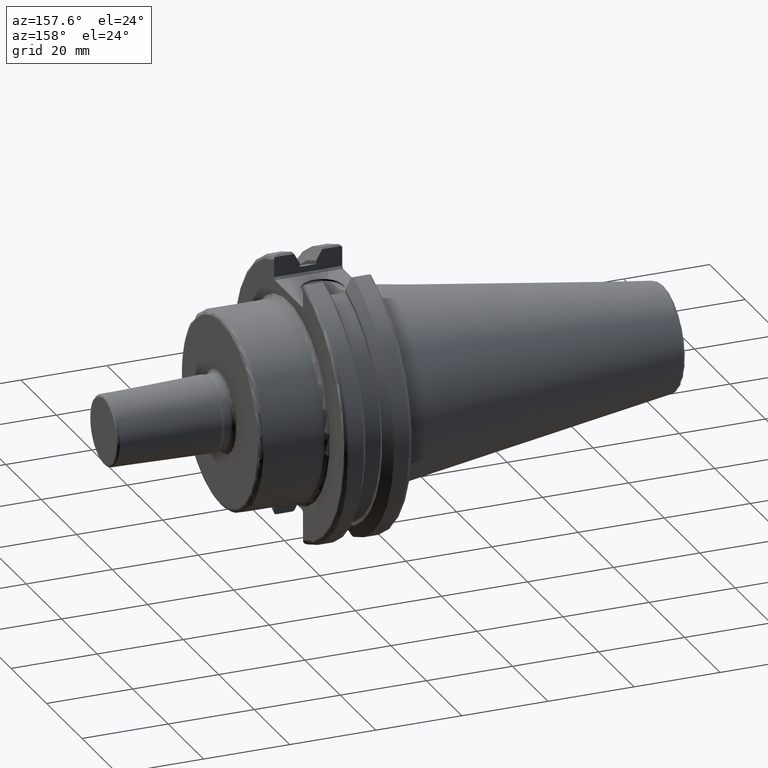
[diagram: clean part render]
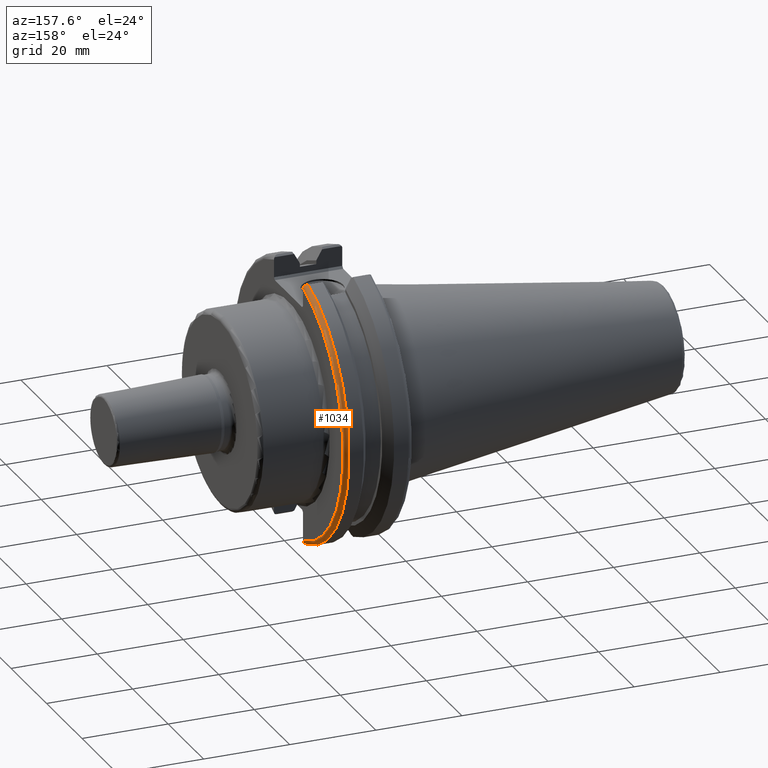
[diagram: same view with one face highlighted and labeled with its STEP entity id]
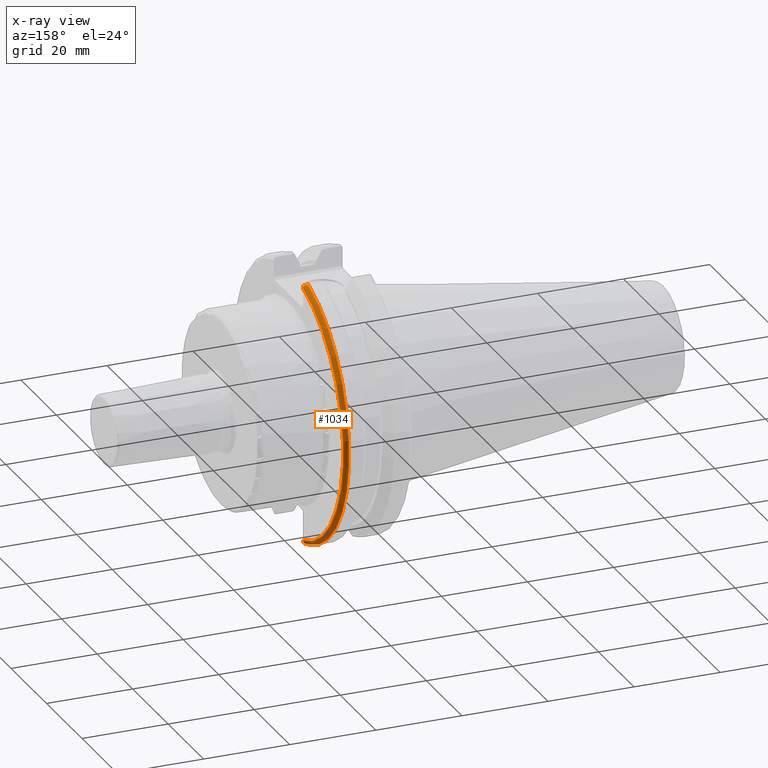
[diagram: x-ray of the same camera — body ghosted, the highlighted face saturated]
A machine part, auxiliary view. The second image highlights one B-rep face of the part: STEP entity #1034.
The next image is the same camera in x-ray: the body ghosted, the highlighted face saturated — about 0% of this face is hidden behind the body in this view.
In plain terms, the highlighted toroidal blend (fillet) surface has major radius 30.75 mm and minor (blend) radius 1 mm.
Its self-contained STEP definition (entity closure, byte-faithful):
#242=FACE_OUTER_BOUND('',#305,.T.);
#305=EDGE_LOOP('',(#766,#767,#768,#769,#770,#771));
#356=B_SPLINE_CURVE_WITH_KNOTS('',3,(#1633,#1634,#1635,#1636,#1637,#1638),
 .UNSPECIFIED.,.F.,.F.,(4,2,4),(0.0977210450333157,0.111963554372601,0.150804064902975),
 .UNSPECIFIED.);
#357=B_SPLINE_CURVE_WITH_KNOTS('',3,(#1642,#1643,#1644,#1645,#1646,#1647),
 .UNSPECIFIED.,.F.,.F.,(4,2,4),(0.452741154494498,0.491581665024872,0.505824174364157),
 .UNSPECIFIED.);
#358=B_SPLINE_CURVE_WITH_KNOTS('',3,(#1649,#1650,#1651,#1652,#1653,#1654,
#1655,#1656),.UNSPECIFIED.,.F.,.F.,(4,2,2,4),(-0.104180282751876,-0.0729784742461443,
-0.0343524753874979,0.),.UNSPECIFIED.);
#359=B_SPLINE_CURVE_WITH_KNOTS('',3,(#1659,#1660,#1661,#1662,#1663,#1664,
#1665,#1666),.UNSPECIFIED.,.F.,.F.,(4,2,2,4),(0.,0.0343524753874976,0.0729784742461442,
0.104180282751876),.UNSPECIFIED.);
#399=CIRCLE('',#1146,30.75);
#400=CIRCLE('',#1147,31.75);
#462=VERTEX_POINT('',#1631);
#463=VERTEX_POINT('',#1632);
#464=VERTEX_POINT('',#1639);
#465=VERTEX_POINT('',#1641);
#466=VERTEX_POINT('',#1648);
#467=VERTEX_POINT('',#1657);
#578=EDGE_CURVE('',#462,#463,#356,.T.);
#579=EDGE_CURVE('',#463,#464,#399,.T.);
#580=EDGE_CURVE('',#464,#465,#357,.T.);
#581=EDGE_CURVE('',#465,#466,#358,.T.);
#582=EDGE_CURVE('',#466,#467,#400,.T.);
#583=EDGE_CURVE('',#467,#462,#359,.T.);
#766=ORIENTED_EDGE('',*,*,#578,.T.);
#767=ORIENTED_EDGE('',*,*,#579,.T.);
#768=ORIENTED_EDGE('',*,*,#580,.T.);
#769=ORIENTED_EDGE('',*,*,#581,.T.);
#770=ORIENTED_EDGE('',*,*,#582,.T.);
#771=ORIENTED_EDGE('',*,*,#583,.T.);
#1014=TOROIDAL_SURFACE('',#1145,30.75,1.);
#1034=ADVANCED_FACE('',(#242),#1014,.T.);
#1145=AXIS2_PLACEMENT_3D('',#1630,#1322,#1323);
#1146=AXIS2_PLACEMENT_3D('',#1640,#1324,#1325);
#1147=AXIS2_PLACEMENT_3D('',#1658,#1326,#1327);
#1322=DIRECTION('center_axis',(1.,0.,0.));
#1323=DIRECTION('ref_axis',(0.,0.,-1.));
#1324=DIRECTION('center_axis',(-1.,0.,0.));
#1325=DIRECTION('ref_axis',(0.,1.,-6.12323399573677E-17));
#1326=DIRECTION('center_axis',(1.,0.,0.));
#1327=DIRECTION('ref_axis',(0.,1.,-6.12323399573676E-17));
#1630=CARTESIAN_POINT('Origin',(18.05,0.,0.));
#1631=CARTESIAN_POINT('',(18.9058722749097,8.19,30.1755016258903));
#1632=CARTESIAN_POINT('',(19.05,8.19,29.6392712461019));
#1633=CARTESIAN_POINT('Ctrl Pts',(18.9058722749097,8.19,30.1755016258903));
#1634=CARTESIAN_POINT('Ctrl Pts',(18.9318163728133,8.19,30.131014531546));
#1635=CARTESIAN_POINT('Ctrl Pts',(18.9539643471756,8.19,30.0852355256475));
#1636=CARTESIAN_POINT('Ctrl Pts',(19.020485567083,8.19,29.9212724384851));
#1637=CARTESIAN_POINT('Ctrl Pts',(19.05,8.19,29.7687396145364));
#1638=CARTESIAN_POINT('Ctrl Pts',(19.05,8.19,29.6392712461019));
#1639=CARTESIAN_POINT('',(19.05,8.19,-29.6392712461019));
#1640=CARTESIAN_POINT('Origin',(19.05,0.,0.));
#1641=CARTESIAN_POINT('',(18.9058722749097,8.19,-30.1755016258903));
#1642=CARTESIAN_POINT('Ctrl Pts',(19.05,8.19,-29.6392712461019));
#1643=CARTESIAN_POINT('Ctrl Pts',(19.05,8.19,-29.7687396145364));
#1644=CARTESIAN_POINT('Ctrl Pts',(19.020485567083,8.19,-29.9212724384851));
#1645=CARTESIAN_POINT('Ctrl Pts',(18.9539643471756,8.19,-30.0852355256475));
#1646=CARTESIAN_POINT('Ctrl Pts',(18.9318163728133,8.19,-30.131014531546));
#1647=CARTESIAN_POINT('Ctrl Pts',(18.9058722749097,8.19,-30.1755016258903));
#1648=CARTESIAN_POINT('',(18.05,8.67204822802685,-30.5427254764662));
#1649=CARTESIAN_POINT('Ctrl Pts',(18.9058722749097,8.19,-30.1755016258903));
#1650=CARTESIAN_POINT('Ctrl Pts',(18.8574463042989,8.2703682833078,-30.2367261024977));
#1651=CARTESIAN_POINT('Ctrl Pts',(18.7926702662319,8.34909446036477,-30.2966996242308));
#1652=CARTESIAN_POINT('Ctrl Pts',(18.6396724190507,8.48862804755883,-30.4029961692546));
#1653=CARTESIAN_POINT('Ctrl Pts',(18.5184414294771,8.56482138642532,-30.4610401774263));
#1654=CARTESIAN_POINT('Ctrl Pts',(18.2983170433775,8.6471881193939,-30.5237870709558));
#1655=CARTESIAN_POINT('Ctrl Pts',(18.1645082512917,8.67204822802685,-30.5427254764662));
#1656=CARTESIAN_POINT('Ctrl Pts',(18.05,8.67204822802685,-30.5427254764662));
#1657=CARTESIAN_POINT('',(18.05,8.67204822802685,30.5427254764662));
#1658=CARTESIAN_POINT('Origin',(18.05,0.,0.));
#1659=CARTESIAN_POINT('Ctrl Pts',(18.05,8.67204822802686,30.5427254764662));
#1660=CARTESIAN_POINT('Ctrl Pts',(18.1645082512917,8.67204822802686,30.5427254764662));
#1661=CARTESIAN_POINT('Ctrl Pts',(18.2983170433775,8.6471881193939,30.5237870709558));
#1662=CARTESIAN_POINT('Ctrl Pts',(18.5184414294771,8.56482138642532,30.4610401774263));
#1663=CARTESIAN_POINT('Ctrl Pts',(18.6396724190507,8.48862804755883,30.4029961692546));
#1664=CARTESIAN_POINT('Ctrl Pts',(18.7926702662319,8.34909446036477,30.2966996242308));
#1665=CARTESIAN_POINT('Ctrl Pts',(18.8574463042989,8.2703682833078,30.2367261024977));
#1666=CARTESIAN_POINT('Ctrl Pts',(18.9058722749097,8.19,30.1755016258903));